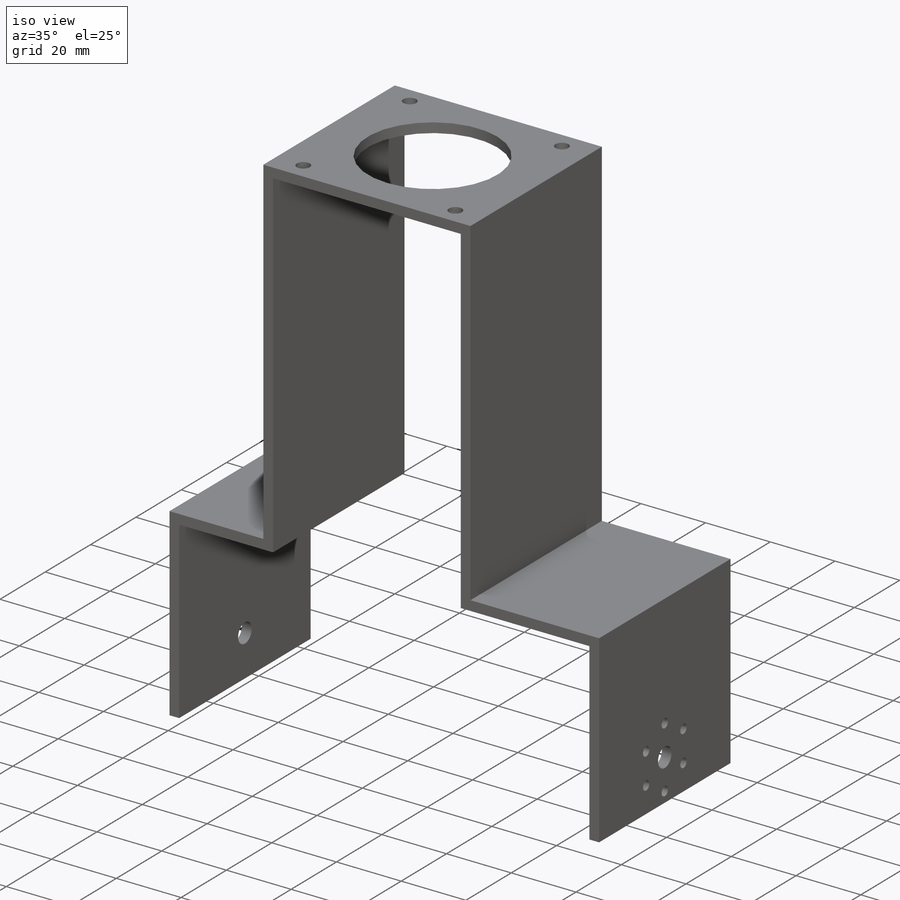
[diagram: iso view]
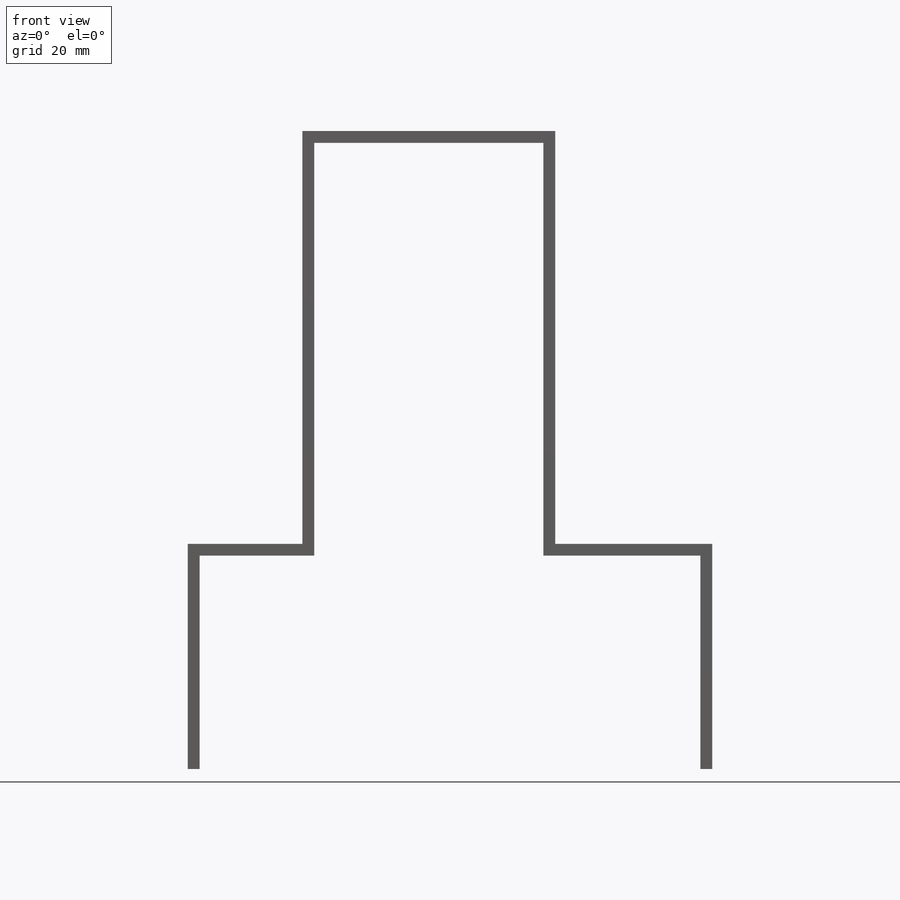
[diagram: front view]
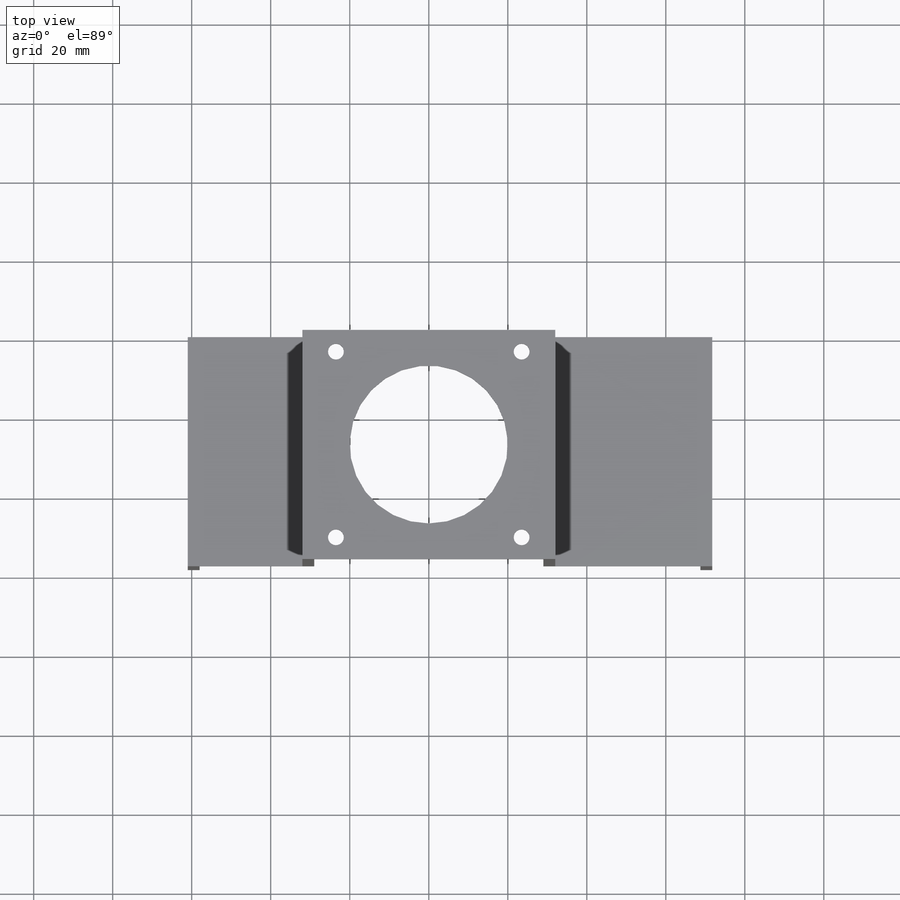
[diagram: top view]
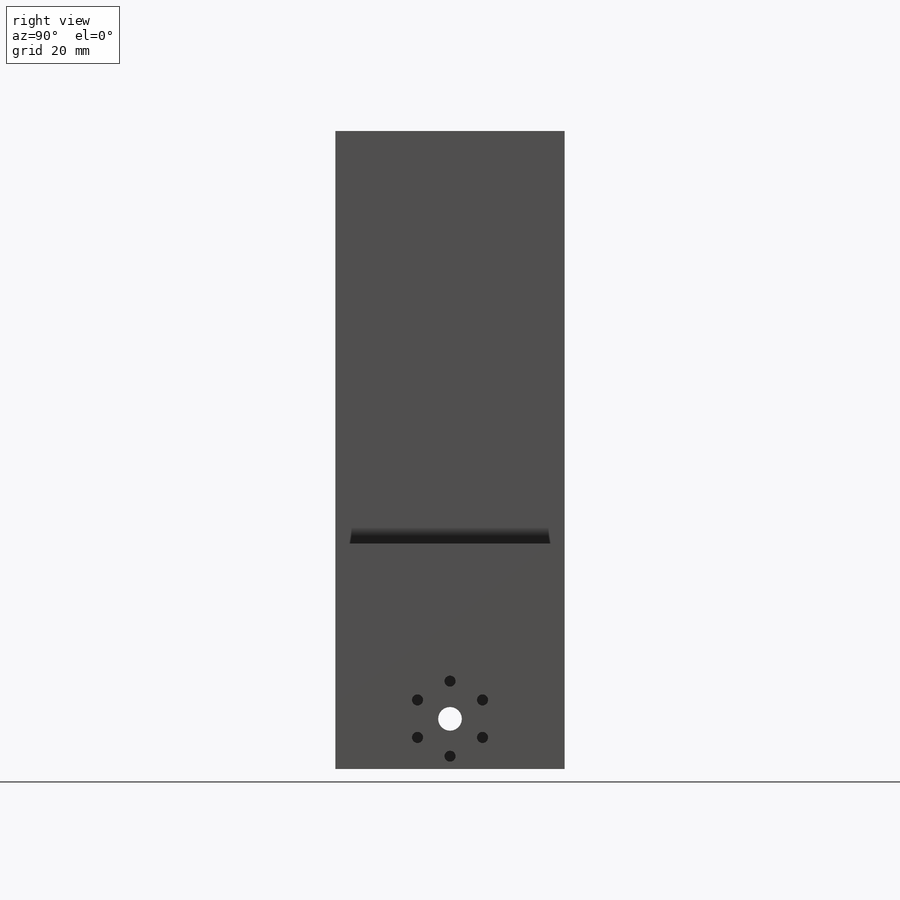
[diagram: right view]
SOLIDWORKS PART (.sldprt)
format: sldprt  version: not decoded by parser v0  size: 205,312 bytes
history: native  units: mm
features: sketch x4, cut_extrude x3, material x1, extrude x1 (+12 scaffold rows collapsed)
feature tree (21):
  scaffold x12  (default folders/planes/origin — collapsed)
  material  "1060 Alloy"
  sketch  "Sketch2"  dims[c1.D1=32.0mm c1.D2=104.5mm c1.D3=39.75mm c1.D4=57.0mm c1.D5=32.0mm c1.D6=29.0mm c1.D7=48.0mm c1.D8=57.0mm c2.D7=3.0mm]
  extrude  "Boss-Extrude1"  Depth=58mm
  sketch  "Sketch3"  dims[c1.D3=4.0mm c1.D4=40.0mm c1.D1=8.5mm c1.D2=5.5mm c2.D3=~17.127234mm c2.D4=~0.422708mm c2.D5=47.0mm]
  cut_extrude  "Cut-Extrude1"  Depth=58mm
  sketch  "Sketch4"  dims[c1.D2=6.0mm c1.D3=19.0mm c1.D4=2.8mm c1.D1=12.7mm c2.D2=~192.738936mm c2.D5=6.0]
  cut_extrude  "Cut-Extrude2"  Depth=58mm
  sketch  "Sketch5"  dims[c1.D2=6.0mm c1.D1=12.7mm c2.D2=29.0mm]
  cut_extrude  "Cut-Extrude3"  Depth=58mm
decode coverage: 8 of 8 modeling features carry decoded parameters
note: ~ marks probable driven/reference dimensions
note: suppression state not decoded; provenance and decode notes live in map.json
